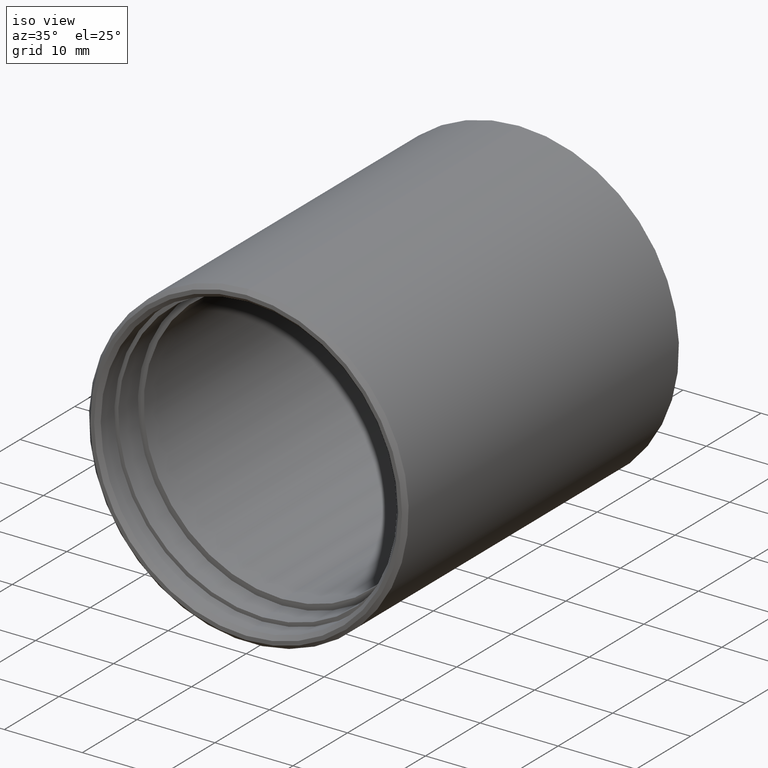
[diagram: clean part render]
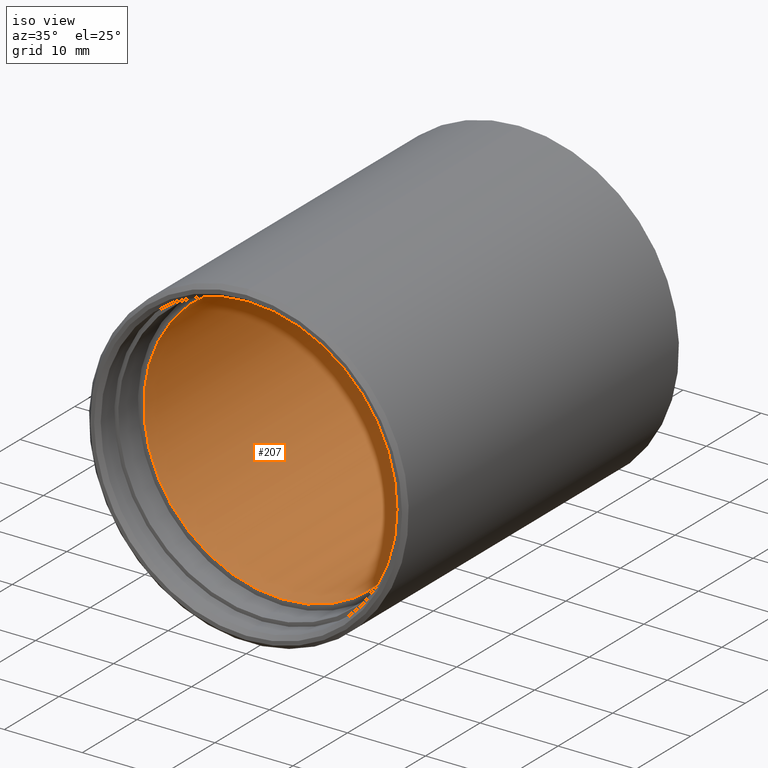
[diagram: same view with one face highlighted and labeled with its STEP entity id]
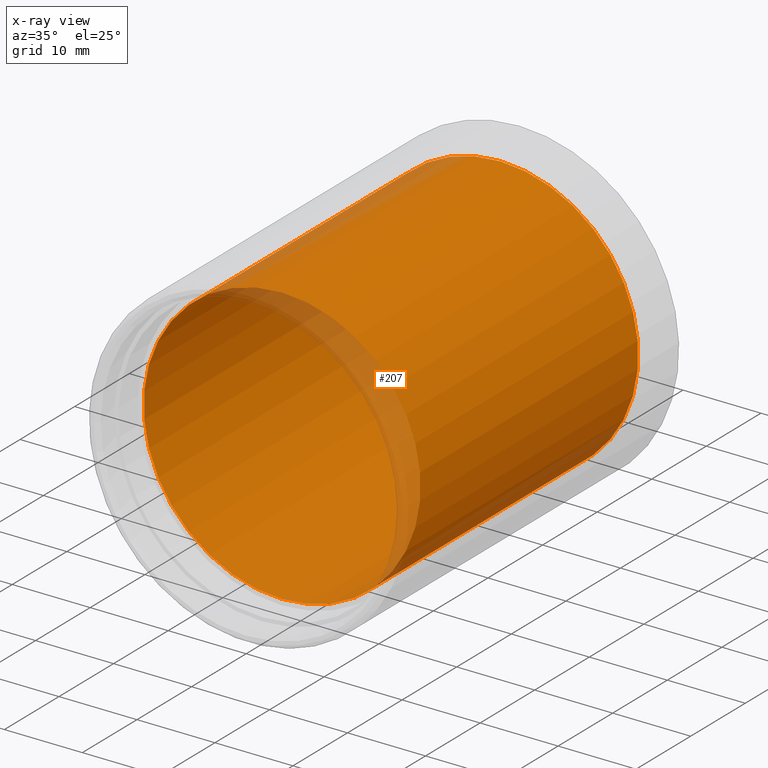
[diagram: x-ray of the same camera — body ghosted, the highlighted face saturated]
A machine part, iso view. The second image highlights one B-rep face of the part: STEP entity #207.
The next image is the same camera in x-ray: the body ghosted, the highlighted face saturated — about 10% of this face is hidden behind the body in this view.
In plain terms, the highlighted cylindrical surface (bore or boss wall) has radius 17.75 mm, axis along (-0, -1, -0).
Its self-contained STEP definition (entity closure, byte-faithful):
#2 = AXIS2_PLACEMENT_3D ( 'NONE', #28, #254, #369 ) ;
#9 = VERTEX_POINT ( 'NONE', #155 ) ;
#28 = CARTESIAN_POINT ( 'NONE',  ( 0.000000000000000000, 46.48000000000000398, 0.000000000000000000 ) ) ;
#31 = AXIS2_PLACEMENT_3D ( 'NONE', #124, #205, #151 ) ;
#34 = CYLINDRICAL_SURFACE ( 'NONE', #240, 17.74999999999999645 ) ;
#44 = ORIENTED_EDGE ( 'NONE', *, *, #359, .T. ) ;
#67 = DIRECTION ( 'NONE',  ( 0.000000000000000000, 0.000000000000000000, -1.000000000000000000 ) ) ;
#93 = FACE_OUTER_BOUND ( 'NONE', #128, .T. ) ;
#96 = DIRECTION ( 'NONE',  ( -0.000000000000000000, -1.000000000000000000, -0.000000000000000000 ) ) ;
#121 = EDGE_CURVE ( 'NONE', #9, #9, #364, .T. ) ;
#124 = CARTESIAN_POINT ( 'NONE',  ( 0.000000000000000000, 6.580000000000000959, 0.000000000000000000 ) ) ;
#128 = EDGE_LOOP ( 'NONE', ( #44 ) ) ;
#151 = DIRECTION ( 'NONE',  ( 0.000000000000000000, 0.000000000000000000, -1.000000000000000000 ) ) ;
#155 = CARTESIAN_POINT ( 'NONE',  ( 0.000000000000000000, 46.48000000000000398, -17.74999999999999645 ) ) ;
#188 = CARTESIAN_POINT ( 'NONE',  ( 0.000000000000000000, 6.580000000000000959, -17.74999999999999645 ) ) ;
#205 = DIRECTION ( 'NONE',  ( 0.000000000000000000, -1.000000000000000000, 0.000000000000000000 ) ) ;
#207 = ADVANCED_FACE ( 'NONE', ( #349, #93 ), #34, .F. ) ;
#234 = CARTESIAN_POINT ( 'NONE',  ( 0.000000000000000000, 46.48000000000000398, 0.000000000000000000 ) ) ;
#240 = AXIS2_PLACEMENT_3D ( 'NONE', #234, #96, #67 ) ;
#254 = DIRECTION ( 'NONE',  ( 0.000000000000000000, -1.000000000000000000, 0.000000000000000000 ) ) ;
#267 = EDGE_LOOP ( 'NONE', ( #336 ) ) ;
#296 = VERTEX_POINT ( 'NONE', #188 ) ;
#336 = ORIENTED_EDGE ( 'NONE', *, *, #121, .F. ) ;
#349 = FACE_OUTER_BOUND ( 'NONE', #267, .T. ) ;
#351 = CIRCLE ( 'NONE', #31, 17.74999999999999645 ) ;
#359 = EDGE_CURVE ( 'NONE', #296, #296, #351, .T. ) ;
#364 = CIRCLE ( 'NONE', #2, 17.74999999999999645 ) ;
#369 = DIRECTION ( 'NONE',  ( 0.000000000000000000, 0.000000000000000000, -1.000000000000000000 ) ) ;